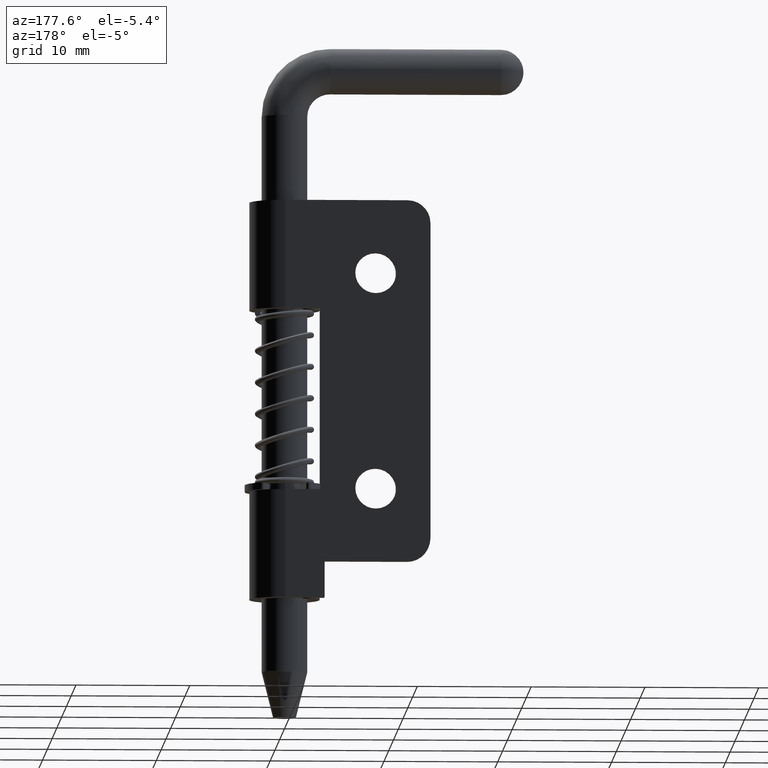
[diagram: clean part render]
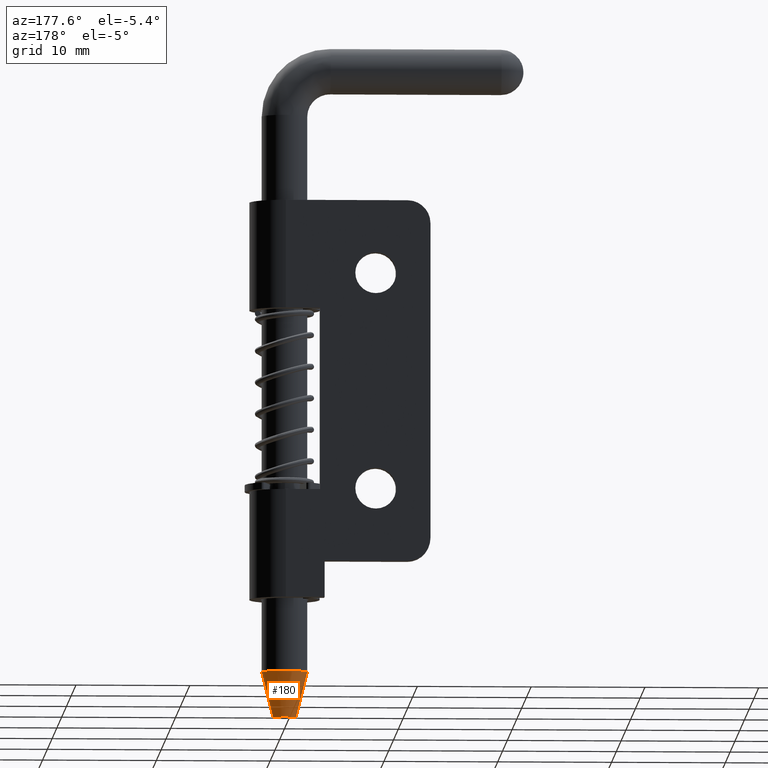
[diagram: same view with one face highlighted and labeled with its STEP entity id]
A machine part, auxiliary view. The second image highlights one B-rep face of the part: STEP entity #180.
In plain terms, the highlighted face is a freeform B-spline surface patch.
Its self-contained STEP definition (entity closure, byte-faithful):
#180=ADVANCED_FACE('',(#549),#548,.T.);
#548=( BOUNDED_SURFACE() B_SPLINE_SURFACE( 2,1,((#1336,#1337),(#1338,#1339),(#1340,#1341),(#1342,#1343),(#1344,#1345)), .UNSPECIFIED.,.F.,.F.,.F.) B_SPLINE_SURFACE_WITH_KNOTS((3,2,3),(2,2),(0.00000000000E+00,5.00000000000E-01,1.00000000000E+00),(0.00000000000E+00,1.00000000000E+00), .UNSPECIFIED. ) GEOMETRIC_REPRESENTATION_ITEM() RATIONAL_B_SPLINE_SURFACE(((1.00000000000E+00,1.00000000000E+00),(7.07106781187E-01,7.07106781187E-01),(1.00000000000E+00,1.00000000000E+00),(7.07106781187E-01,7.07106781187E-01),(1.00000000000E+00,1.00000000000E+00))) REPRESENTATION_ITEM('') SURFACE() );
#549=FACE_OUTER_BOUND('',#1346,.T.);
#1336=CARTESIAN_POINT('',(1.00000000000E+00,5.66553889765E-16,-5.29999999999E+01));
#1337=CARTESIAN_POINT('',(2.00000000000E+00,1.13310777953E-15,-4.89999999999E+01));
#1338=CARTESIAN_POINT('',(1.00000000000E+00,1.00000000000E+00,-5.29999999999E+01));
#1339=CARTESIAN_POINT('',(2.00000000000E+00,2.00000000000E+00,-4.89999999999E+01));
#1340=CARTESIAN_POINT('',(-5.05321549807E-16,1.00000000000E+00,-5.29999999999E+01));
#1341=CARTESIAN_POINT('',(-1.01064309961E-15,2.00000000000E+00,-4.89999999999E+01));
#1342=CARTESIAN_POINT('',(-1.00000000000E+00,1.00000000000E+00,-5.29999999999E+01));
#1343=CARTESIAN_POINT('',(-2.00000000000E+00,2.00000000000E+00,-4.89999999999E+01));
#1344=CARTESIAN_POINT('',(-1.00000000000E+00,-4.44089209850E-16,-5.29999999999E+01));
#1345=CARTESIAN_POINT('',(-2.00000000000E+00,-8.88178419700E-16,-4.89999999999E+01));
#1346=EDGE_LOOP('',(#3271,#3272,#3273,#3274));
#3271=ORIENTED_EDGE('',*,*,#3566,.F.);
#3272=ORIENTED_EDGE('',*,*,#3635,.T.);
#3273=ORIENTED_EDGE('',*,*,#3637,.T.);
#3274=ORIENTED_EDGE('',*,*,#3636,.F.);
#3566=EDGE_CURVE('',#3914,#3915,#3916,.T.);
#3635=EDGE_CURVE('',#3914,#4360,#4367,.T.);
#3636=EDGE_CURVE('',#3915,#4359,#4373,.T.);
#3637=EDGE_CURVE('',#4360,#4359,#4379,.T.);
#3914=VERTEX_POINT('',#5338);
#3915=VERTEX_POINT('',#5339);
#3916=CIRCLE('',#5343,1.00000000000E+00);
#4359=VERTEX_POINT('',#5609);
#4360=VERTEX_POINT('',#5610);
#4367=(BOUNDED_CURVE() B_SPLINE_CURVE(1,(#5615,#5616),.UNSPECIFIED.,.F.,.F.) B_SPLINE_CURVE_WITH_KNOTS((2,2),(0.00000000000E+00,1.00000000000E+00),.UNSPECIFIED.) CURVE() GEOMETRIC_REPRESENTATION_ITEM() RATIONAL_B_SPLINE_CURVE((1.00000000000E+00,1.00000000000E+00)) REPRESENTATION_ITEM('') );
#4373=(BOUNDED_CURVE() B_SPLINE_CURVE(1,(#5617,#5618),.UNSPECIFIED.,.F.,.F.) B_SPLINE_CURVE_WITH_KNOTS((2,2),(0.00000000000E+00,1.00000000000E+00),.UNSPECIFIED.) CURVE() GEOMETRIC_REPRESENTATION_ITEM() RATIONAL_B_SPLINE_CURVE((7.50000000000E-01,7.50000000000E-01)) REPRESENTATION_ITEM('') );
#4379=CIRCLE('',#5622,2.00000000000E+00);
#5338=CARTESIAN_POINT('',(-1.00000000000E+00,0.00000000000E+00,-5.29999999999E+01));
#5339=CARTESIAN_POINT('',(1.00000000000E+00,1.11022302463E-16,-5.29999999999E+01));
#5340=CARTESIAN_POINT('',(0.00000000000E+00,0.00000000000E+00,-5.29999999999E+01));
#5341=DIRECTION('',(-0.00000000000E+00,0.00000000000E+00,-1.00000000000E+00));
#5342=DIRECTION('',(-1.00000000000E+00,-1.22460635382E-16,0.00000000000E+00));
#5343=AXIS2_PLACEMENT_3D('',#5340,#5341,#5342);
#5609=CARTESIAN_POINT('',(2.00000000000E+00,2.22044604925E-16,-4.89999999999E+01));
#5610=CARTESIAN_POINT('',(-2.00000000000E+00,0.00000000000E+00,-4.89999999999E+01));
#5615=CARTESIAN_POINT('',(-1.00000000000E+00,-2.44921270765E-16,-5.29999999999E+01));
#5616=CARTESIAN_POINT('',(-2.00000000000E+00,-4.89842541529E-16,-4.89999999999E+01));
#5617=CARTESIAN_POINT('',(1.00000000000E+00,2.59052039079E-16,-5.29999999999E+01));
#5618=CARTESIAN_POINT('',(2.00000000000E+00,5.18104078158E-16,-4.89999999999E+01));
#5619=CARTESIAN_POINT('',(0.00000000000E+00,0.00000000000E+00,-4.89999999999E+01));
#5620=DIRECTION('',(-0.00000000000E+00,0.00000000000E+00,-1.00000000000E+00));
#5621=DIRECTION('',(-1.00000000000E+00,-1.22460635382E-16,0.00000000000E+00));
#5622=AXIS2_PLACEMENT_3D('',#5619,#5620,#5621);